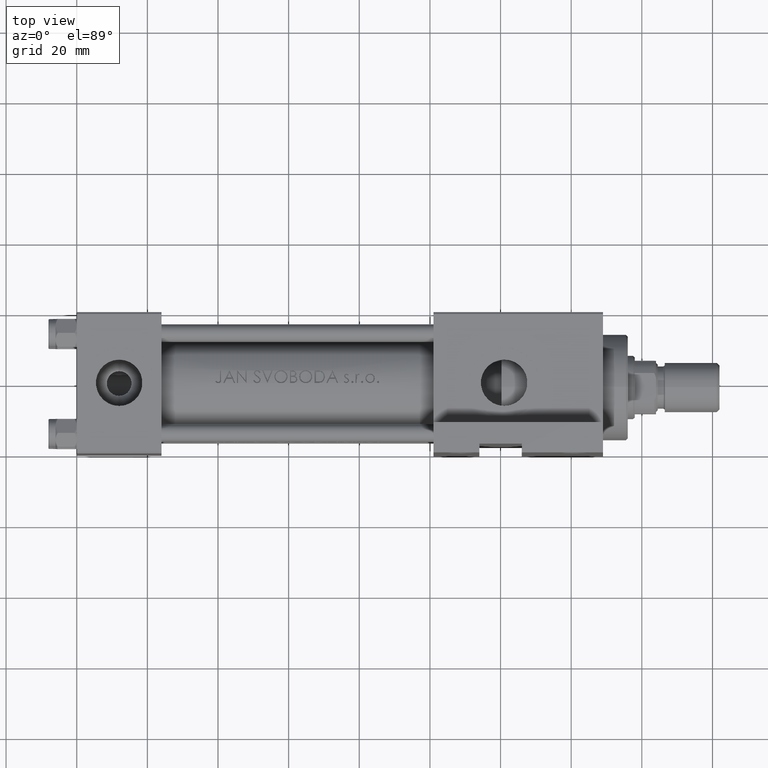
[diagram: clean part render]
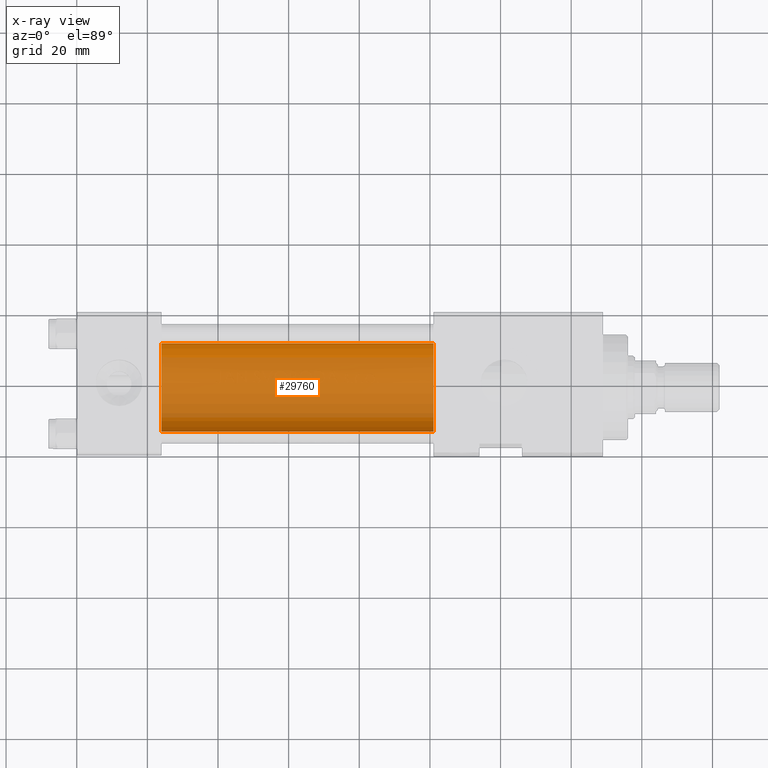
[diagram: x-ray — body ghosted, one internal face saturated and labeled with its STEP entity id]
A machine part, top view, then the same camera in x-ray: the body is ghosted and one INTERNAL B-rep face — a face not visible from any outside direction — is saturated and labeled: STEP entity #29760.
In plain terms, the highlighted cylindrical surface (partial cylindrical patch) has radius 12.5 mm, axis along (-1, -0, 0).
Its self-contained STEP definition (entity closure, byte-faithful):
#877 = VERTEX_POINT ( 'NONE', #6330 ) ;
#1838 = CARTESIAN_POINT ( 'NONE',  ( 101.0000000000000000, 0.000000000000000000, 11.49999999999998934 ) ) ;
#3297 = CARTESIAN_POINT ( 'NONE',  ( 101.0000000000000000, 1.530808498934191127E-15, -13.50000000000000533 ) ) ;
#6330 = CARTESIAN_POINT ( 'NONE',  ( 24.00000000000000000, 1.530808498934191127E-15, -13.50000000000000533 ) ) ;
#6705 = ORIENTED_EDGE ( 'NONE', *, *, #31930, .F. ) ;
#7283 = LINE ( 'NONE', #23391, #32923 ) ;
#7829 = AXIS2_PLACEMENT_3D ( 'NONE', #9380, #9632, #24998 ) ;
#8537 = CARTESIAN_POINT ( 'NONE',  ( 24.00000000000000000, 0.000000000000000000, -1.000000000000007772 ) ) ;
#9215 = EDGE_CURVE ( 'NONE', #877, #40644, #22158, .T. ) ;
#9380 = CARTESIAN_POINT ( 'NONE',  ( 101.0000000000000000, 0.000000000000000000, -1.000000000000007772 ) ) ;
#9632 = DIRECTION ( 'NONE',  ( -1.000000000000000000, -0.000000000000000000, -0.000000000000000000 ) ) ;
#10992 = VERTEX_POINT ( 'NONE', #44329 ) ;
#13792 = EDGE_CURVE ( 'NONE', #10992, #43936, #44823, .T. ) ;
#19301 = CARTESIAN_POINT ( 'NONE',  ( 24.00000000000000000, 0.000000000000000000, 11.49999999999998934 ) ) ;
#21542 = AXIS2_PLACEMENT_3D ( 'NONE', #29792, #33565, #22498 ) ;
#22158 = CIRCLE ( 'NONE', #41448, 12.49999999999999645 ) ;
#22498 = DIRECTION ( 'NONE',  ( 0.000000000000000000, 0.000000000000000000, -1.000000000000000000 ) ) ;
#23391 = CARTESIAN_POINT ( 'NONE',  ( 101.0000000000000000, 0.000000000000000000, 11.49999999999998934 ) ) ;
#23902 = DIRECTION ( 'NONE',  ( 0.000000000000000000, 0.000000000000000000, -1.000000000000000000 ) ) ;
#24998 = DIRECTION ( 'NONE',  ( 0.000000000000000000, 0.000000000000000000, 1.000000000000000000 ) ) ;
#29760 = ADVANCED_FACE ( 'NONE', ( #43864 ), #35574, .F. ) ;
#29792 = CARTESIAN_POINT ( 'NONE',  ( 101.0000000000000000, 0.000000000000000000, -1.000000000000007772 ) ) ;
#29984 = DIRECTION ( 'NONE',  ( -1.000000000000000000, -0.000000000000000000, -0.000000000000000000 ) ) ;
#31930 = EDGE_CURVE ( 'NONE', #10992, #877, #49079, .T. ) ;
#32923 = VECTOR ( 'NONE', #45286, 1000.000000000000000 ) ;
#33565 = DIRECTION ( 'NONE',  ( 1.000000000000000000, 0.000000000000000000, 0.000000000000000000 ) ) ;
#34249 = EDGE_LOOP ( 'NONE', ( #6705, #46128, #42110, #46717 ) ) ;
#35574 = CYLINDRICAL_SURFACE ( 'NONE', #7829, 12.49999999999999645 ) ;
#39259 = DIRECTION ( 'NONE',  ( 1.000000000000000000, 0.000000000000000000, 0.000000000000000000 ) ) ;
#40644 = VERTEX_POINT ( 'NONE', #19301 ) ;
#41448 = AXIS2_PLACEMENT_3D ( 'NONE', #8537, #39259, #23902 ) ;
#42110 = ORIENTED_EDGE ( 'NONE', *, *, #46869, .T. ) ;
#43864 = FACE_OUTER_BOUND ( 'NONE', #34249, .T. ) ;
#43936 = VERTEX_POINT ( 'NONE', #1838 ) ;
#44329 = CARTESIAN_POINT ( 'NONE',  ( 101.0000000000000000, 1.530808498934191127E-15, -13.50000000000000533 ) ) ;
#44823 = CIRCLE ( 'NONE', #21542, 12.49999999999999645 ) ;
#45286 = DIRECTION ( 'NONE',  ( -1.000000000000000000, -0.000000000000000000, -0.000000000000000000 ) ) ;
#46128 = ORIENTED_EDGE ( 'NONE', *, *, #13792, .T. ) ;
#46717 = ORIENTED_EDGE ( 'NONE', *, *, #9215, .F. ) ;
#46869 = EDGE_CURVE ( 'NONE', #43936, #40644, #7283, .T. ) ;
#47953 = VECTOR ( 'NONE', #29984, 1000.000000000000000 ) ;
#49079 = LINE ( 'NONE', #3297, #47953 ) ;